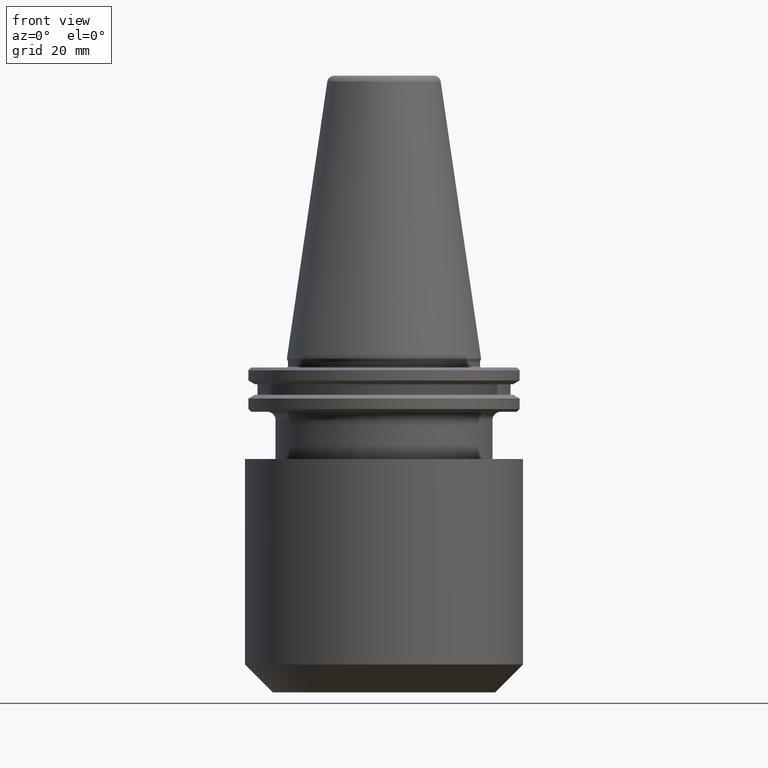
[diagram: clean part render]
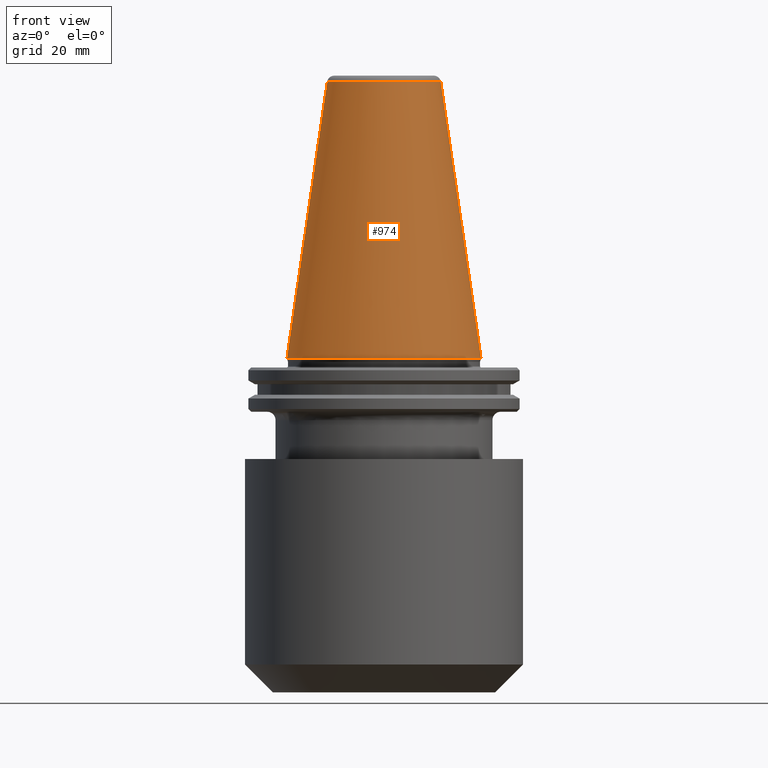
[diagram: same view with one face highlighted and labeled with its STEP entity id]
A machine part, front view. The second image highlights one B-rep face of the part: STEP entity #974.
In plain terms, the highlighted conical surface has half-angle 8.297 deg.
Its self-contained STEP definition (entity closure, byte-faithful):
#47 = EDGE_CURVE ( 'NONE', #393, #826, #785, .T. ) ;
#57 = ORIENTED_EDGE ( 'NONE', *, *, #519, .T. ) ;
#74 = DIRECTION ( 'NONE',  ( -0.0000000000000000000, -0.0000000000000000000, 1.000000000000000000 ) ) ;
#89 = EDGE_LOOP ( 'NONE', ( #832, #481, #917, #57 ) ) ;
#106 = LINE ( 'NONE', #588, #937 ) ;
#138 = DIRECTION ( 'NONE',  ( -0.1443082234293891500, 0.0000000000000000000, -0.9895327870518760800 ) ) ;
#155 = DIRECTION ( 'NONE',  ( 1.000000000000000000, 0.0000000000000000000, 0.0000000000000000000 ) ) ;
#161 = VECTOR ( 'NONE', #521, 1000.000000000000000 ) ;
#220 = DIRECTION ( 'NONE',  ( -0.0000000000000000000, -0.0000000000000000000, 1.000000000000000000 ) ) ;
#315 = EDGE_CURVE ( 'NONE', #660, #786, #106, .T. ) ;
#335 = AXIS2_PLACEMENT_3D ( 'NONE', #812, #220, #732 ) ;
#347 = EDGE_CURVE ( 'NONE', #660, #393, #912, .T. ) ;
#382 = CARTESIAN_POINT ( 'NONE',  ( 20.39829252569114000, 3.387574655494023600E-015, 99.61077055857353500 ) ) ;
#393 = VERTEX_POINT ( 'NONE', #382 ) ;
#441 = AXIS2_PLACEMENT_3D ( 'NONE', #998, #583, #763 ) ;
#462 = CARTESIAN_POINT ( 'NONE',  ( -20.39829252569114000, 0.0000000000000000000, 99.61077055857353500 ) ) ;
#481 = ORIENTED_EDGE ( 'NONE', *, *, #347, .F. ) ;
#519 = EDGE_CURVE ( 'NONE', #786, #826, #1006, .T. ) ;
#521 = DIRECTION ( 'NONE',  ( 0.1443082234293891500, 1.767266039134425100E-017, -0.9895327870518760800 ) ) ;
#531 = CARTESIAN_POINT ( 'NONE',  ( 34.92500000000009700, 0.0000000000000000000, -5.551115123125782700E-014 ) ) ;
#583 = DIRECTION ( 'NONE',  ( 0.0000000000000000000, 0.0000000000000000000, -1.000000000000000000 ) ) ;
#588 = CARTESIAN_POINT ( 'NONE',  ( -34.92500000000009700, 0.0000000000000000000, -5.551115123125782700E-014 ) ) ;
#606 = CONICAL_SURFACE ( 'NONE', #441, 34.92500000000009700, 0.1448138426689039600 ) ;
#660 = VERTEX_POINT ( 'NONE', #462 ) ;
#691 = FACE_OUTER_BOUND ( 'NONE', #89, .T. ) ;
#732 = DIRECTION ( 'NONE',  ( 1.000000000000000000, 0.0000000000000000000, 0.0000000000000000000 ) ) ;
#747 = CARTESIAN_POINT ( 'NONE',  ( 0.0000000000000000000, 0.0000000000000000000, 99.61077055857353500 ) ) ;
#763 = DIRECTION ( 'NONE',  ( -1.000000000000000000, 0.0000000000000000000, 0.0000000000000000000 ) ) ;
#785 = LINE ( 'NONE', #1018, #161 ) ;
#786 = VERTEX_POINT ( 'NONE', #795 ) ;
#795 = CARTESIAN_POINT ( 'NONE',  ( -34.92500000000009700, 4.277078946022142700E-015, -5.551115123125782700E-014 ) ) ;
#812 = CARTESIAN_POINT ( 'NONE',  ( 0.0000000000000000000, 0.0000000000000000000, -5.551115123125782700E-014 ) ) ;
#826 = VERTEX_POINT ( 'NONE', #531 ) ;
#832 = ORIENTED_EDGE ( 'NONE', *, *, #47, .F. ) ;
#888 = AXIS2_PLACEMENT_3D ( 'NONE', #747, #74, #155 ) ;
#912 = CIRCLE ( 'NONE', #888, 20.39829252569114000 ) ;
#917 = ORIENTED_EDGE ( 'NONE', *, *, #315, .T. ) ;
#937 = VECTOR ( 'NONE', #138, 1000.000000000000000 ) ;
#974 = ADVANCED_FACE ( 'NONE', ( #691 ), #606, .T. ) ;
#998 = CARTESIAN_POINT ( 'NONE',  ( 0.0000000000000000000, 0.0000000000000000000, -5.551115123125782700E-014 ) ) ;
#1006 = CIRCLE ( 'NONE', #335, 34.92500000000009700 ) ;
#1018 = CARTESIAN_POINT ( 'NONE',  ( 34.92500000000009700, 4.277078946022142700E-015, -5.551115123125782700E-014 ) ) ;